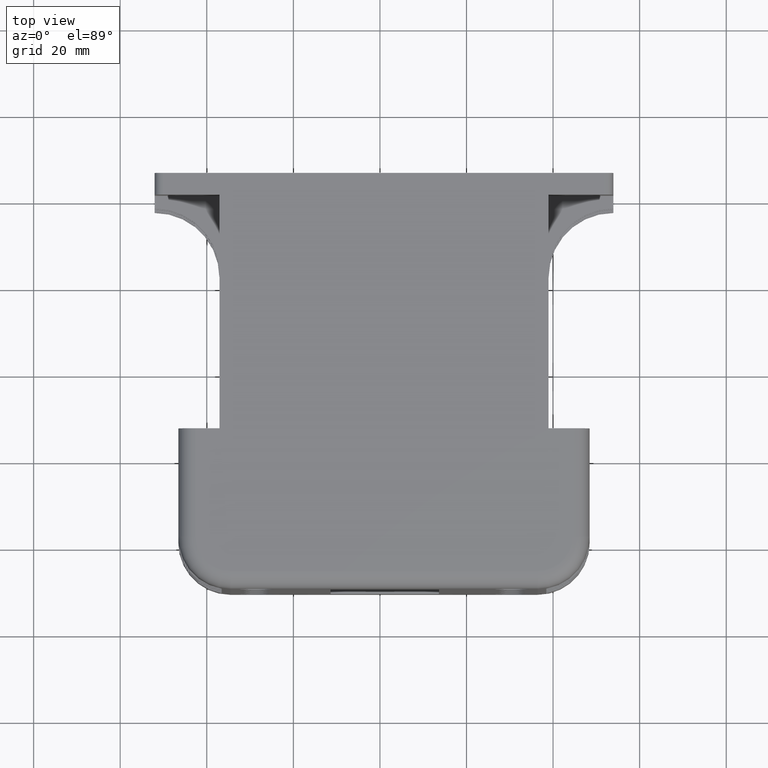
[diagram: clean part render]
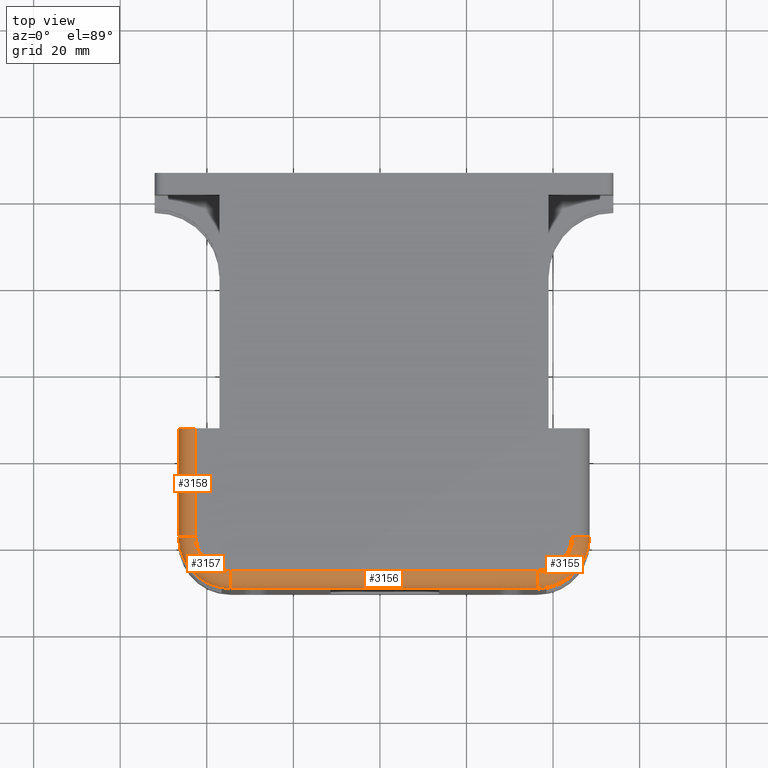
[diagram: same view with one multi-face feature highlighted, each face labeled with its STEP entity id]
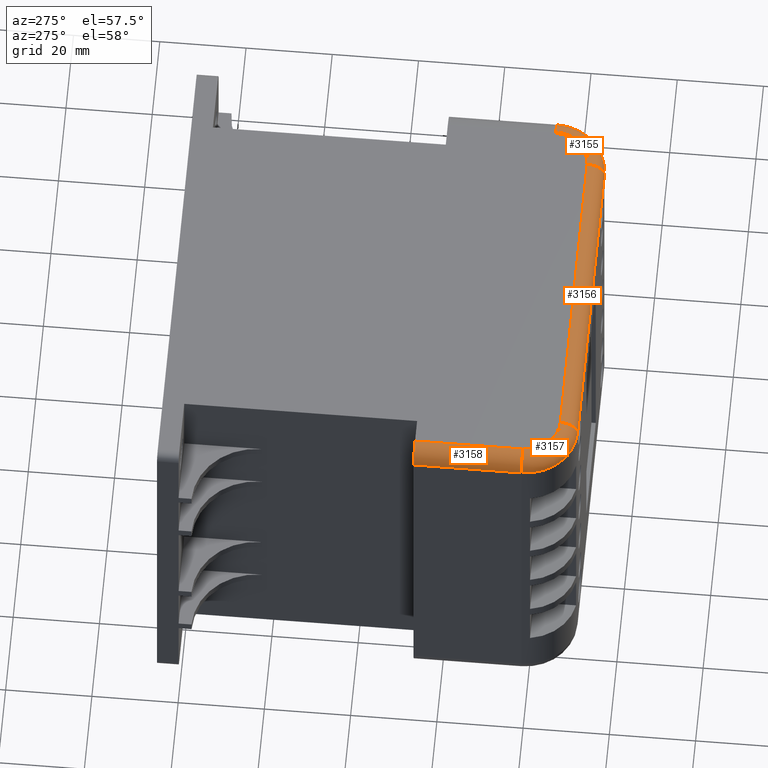
[diagram: same view with one multi-face feature highlighted, each face labeled with its STEP entity id]
A machine part, top view. The highlighted faces form ONE feature: a constant-radius fillet chain: 4 tangent blend faces with common blend radius 4 mm. The faces share edges in the B-rep.
A second angle (auxiliary view) of the same feature is appended — it is thin or edge-on in the first view.
Their STEP definitions:
[1] entity #3157 (Torus):
#26=TOROIDAL_SURFACE('',#3501,8.,4.);
#113=CIRCLE('',#3500,4.);
#114=CIRCLE('',#3502,4.00000000000004);
#115=CIRCLE('',#3503,12.);
#116=CIRCLE('',#3504,8.);
#288=FACE_OUTER_BOUND('',#478,.T.);
#478=EDGE_LOOP('',(#2142,#2143,#2144,#2145));
#1326=VERTEX_POINT('',#4854);
#1331=VERTEX_POINT('',#4870);
#1332=VERTEX_POINT('',#4871);
#1333=VERTEX_POINT('',#4876);
#1642=EDGE_CURVE('',#1331,#1332,#113,.T.);
#1645=EDGE_CURVE('',#1333,#1326,#114,.T.);
#1646=EDGE_CURVE('',#1326,#1332,#115,.T.);
#1647=EDGE_CURVE('',#1331,#1333,#116,.T.);
#2142=ORIENTED_EDGE('',*,*,#1645,.T.);
#2143=ORIENTED_EDGE('',*,*,#1646,.T.);
#2144=ORIENTED_EDGE('',*,*,#1642,.F.);
#2145=ORIENTED_EDGE('',*,*,#1647,.T.);
#3157=ADVANCED_FACE('',(#288),#26,.T.);
#3500=AXIS2_PLACEMENT_3D('',#4872,#3984,#3985);
#3501=AXIS2_PLACEMENT_3D('',#4875,#3988,#3989);
#3502=AXIS2_PLACEMENT_3D('',#4877,#3990,#3991);
#3503=AXIS2_PLACEMENT_3D('',#4878,#3992,#3993);
#3504=AXIS2_PLACEMENT_3D('',#4879,#3994,#3995);
#3984=DIRECTION('center_axis',(-1.,-5.55111512312578E-16,0.));
#3985=DIRECTION('ref_axis',(0.,0.,1.));
#3988=DIRECTION('center_axis',(0.,0.,-1.));
#3989=DIRECTION('ref_axis',(-1.,0.,0.));
#3990=DIRECTION('center_axis',(0.,1.,0.));
#3991=DIRECTION('ref_axis',(0.,0.,1.));
#3992=DIRECTION('center_axis',(0.,0.,1.));
#3993=DIRECTION('ref_axis',(0.707106781186548,0.707106781186547,0.));
#3994=DIRECTION('center_axis',(0.,0.,-1.));
#3995=DIRECTION('ref_axis',(0.707106781186548,0.707106781186547,0.));
#4854=CARTESIAN_POINT('',(3.39481529307603E-14,25.,86.));
#4870=CARTESIAN_POINT('',(-12.,33.,90.));
#4871=CARTESIAN_POINT('',(-12.,37.,86.));
#4872=CARTESIAN_POINT('Origin',(-12.,33.,86.));
#4875=CARTESIAN_POINT('Origin',(-12.,25.,86.));
#4876=CARTESIAN_POINT('',(-3.99999999999997,25.,90.));
#4877=CARTESIAN_POINT('Origin',(-3.99999999999997,25.,86.));
#4878=CARTESIAN_POINT('Origin',(-12.,25.,86.));
#4879=CARTESIAN_POINT('Origin',(-12.,25.,90.));
[2] entity #3158 (Cylinder):
#46=CYLINDRICAL_SURFACE('',#3505,4.);
#72=CIRCLE('',#3416,4.);
#114=CIRCLE('',#3502,4.00000000000004);
#289=FACE_OUTER_BOUND('',#479,.T.);
#479=EDGE_LOOP('',(#2146,#2147,#2148,#2149));
#715=LINE('',#4856,#1019);
#720=LINE('',#4881,#1024);
#1019=VECTOR('',#3967,10.);
#1024=VECTOR('',#3998,10.);
#1280=VERTEX_POINT('',#4697);
#1281=VERTEX_POINT('',#4699);
#1326=VERTEX_POINT('',#4854);
#1333=VERTEX_POINT('',#4876);
#1564=EDGE_CURVE('',#1281,#1280,#72,.T.);
#1635=EDGE_CURVE('',#1280,#1326,#715,.T.);
#1645=EDGE_CURVE('',#1333,#1326,#114,.T.);
#1648=EDGE_CURVE('',#1333,#1281,#720,.T.);
#2146=ORIENTED_EDGE('',*,*,#1564,.T.);
#2147=ORIENTED_EDGE('',*,*,#1635,.T.);
#2148=ORIENTED_EDGE('',*,*,#1645,.F.);
#2149=ORIENTED_EDGE('',*,*,#1648,.T.);
#3158=ADVANCED_FACE('',(#289),#46,.T.);
#3416=AXIS2_PLACEMENT_3D('',#4700,#3779,#3780);
#3502=AXIS2_PLACEMENT_3D('',#4877,#3990,#3991);
#3505=AXIS2_PLACEMENT_3D('',#4880,#3996,#3997);
#3779=DIRECTION('center_axis',(0.,1.,0.));
#3780=DIRECTION('ref_axis',(0.707106781186549,0.,0.707106781186546));
#3967=DIRECTION('',(0.,1.,0.));
#3990=DIRECTION('center_axis',(0.,1.,0.));
#3991=DIRECTION('ref_axis',(0.,0.,1.));
#3996=DIRECTION('center_axis',(0.,1.,0.));
#3997=DIRECTION('ref_axis',(0.707106781186549,0.,0.707106781186546));
#3998=DIRECTION('',(0.,-1.,0.));
#4697=CARTESIAN_POINT('',(3.39481529307603E-14,0.,86.));
#4699=CARTESIAN_POINT('',(-3.99999999999997,0.,90.));
#4700=CARTESIAN_POINT('Origin',(-3.99999999999997,0.,86.));
#4854=CARTESIAN_POINT('',(3.39481529307603E-14,25.,86.));
#4856=CARTESIAN_POINT('',(3.38618022510673E-14,0.,86.));
#4876=CARTESIAN_POINT('',(-3.99999999999997,25.,90.));
#4877=CARTESIAN_POINT('Origin',(-3.99999999999997,25.,86.));
#4880=CARTESIAN_POINT('Origin',(-3.99999999999997,0.,86.));
#4881=CARTESIAN_POINT('',(-3.99999999999997,0.,90.));
[3] entity #3156 (Cylinder):
#45=CYLINDRICAL_SURFACE('',#3499,4.);
#110=CIRCLE('',#3496,4.);
#113=CIRCLE('',#3500,4.);
#287=FACE_OUTER_BOUND('',#477,.T.);
#477=EDGE_LOOP('',(#2138,#2139,#2140,#2141));
#718=LINE('',#4873,#1022);
#719=LINE('',#4874,#1023);
#1022=VECTOR('',#3986,10.);
#1023=VECTOR('',#3987,10.);
#1329=VERTEX_POINT('',#4864);
#1330=VERTEX_POINT('',#4865);
#1331=VERTEX_POINT('',#4870);
#1332=VERTEX_POINT('',#4871);
#1639=EDGE_CURVE('',#1329,#1330,#110,.T.);
#1642=EDGE_CURVE('',#1331,#1332,#113,.T.);
#1643=EDGE_CURVE('',#1332,#1330,#718,.T.);
#1644=EDGE_CURVE('',#1329,#1331,#719,.T.);
#2138=ORIENTED_EDGE('',*,*,#1642,.T.);
#2139=ORIENTED_EDGE('',*,*,#1643,.T.);
#2140=ORIENTED_EDGE('',*,*,#1639,.F.);
#2141=ORIENTED_EDGE('',*,*,#1644,.T.);
#3156=ADVANCED_FACE('',(#287),#45,.T.);
#3496=AXIS2_PLACEMENT_3D('',#4866,#3976,#3977);
#3499=AXIS2_PLACEMENT_3D('',#4869,#3982,#3983);
#3500=AXIS2_PLACEMENT_3D('',#4872,#3984,#3985);
#3976=DIRECTION('center_axis',(-1.,0.,0.));
#3977=DIRECTION('ref_axis',(0.,0.,1.));
#3982=DIRECTION('center_axis',(1.,0.,0.));
#3983=DIRECTION('ref_axis',(0.,0.707106781186545,0.70710678118655));
#3984=DIRECTION('center_axis',(-1.,-5.55111512312578E-16,0.));
#3985=DIRECTION('ref_axis',(0.,0.,1.));
#3986=DIRECTION('',(-1.,0.,0.));
#3987=DIRECTION('',(1.,0.,0.));
#4864=CARTESIAN_POINT('',(-83.,33.,90.));
#4865=CARTESIAN_POINT('',(-83.,37.,86.));
#4866=CARTESIAN_POINT('Origin',(-83.,33.,86.));
#4869=CARTESIAN_POINT('Origin',(-71.25,33.,86.));
#4870=CARTESIAN_POINT('',(-12.,33.,90.));
#4871=CARTESIAN_POINT('',(-12.,37.,86.));
#4872=CARTESIAN_POINT('Origin',(-12.,33.,86.));
#4873=CARTESIAN_POINT('',(-71.25,37.,86.));
#4874=CARTESIAN_POINT('',(-71.25,33.,90.));
[4] entity #3155 (Torus):
#25=TOROIDAL_SURFACE('',#3495,8.,4.);
#109=CIRCLE('',#3494,4.);
#110=CIRCLE('',#3496,4.);
#111=CIRCLE('',#3497,12.);
#112=CIRCLE('',#3498,8.);
#286=FACE_OUTER_BOUND('',#476,.T.);
#476=EDGE_LOOP('',(#2134,#2135,#2136,#2137));
#1327=VERTEX_POINT('',#4858);
#1328=VERTEX_POINT('',#4860);
#1329=VERTEX_POINT('',#4864);
#1330=VERTEX_POINT('',#4865);
#1637=EDGE_CURVE('',#1327,#1328,#109,.T.);
#1639=EDGE_CURVE('',#1329,#1330,#110,.T.);
#1640=EDGE_CURVE('',#1330,#1328,#111,.T.);
#1641=EDGE_CURVE('',#1327,#1329,#112,.T.);
#2134=ORIENTED_EDGE('',*,*,#1639,.T.);
#2135=ORIENTED_EDGE('',*,*,#1640,.T.);
#2136=ORIENTED_EDGE('',*,*,#1637,.F.);
#2137=ORIENTED_EDGE('',*,*,#1641,.T.);
#3155=ADVANCED_FACE('',(#286),#25,.T.);
#3494=AXIS2_PLACEMENT_3D('',#4861,#3971,#3972);
#3495=AXIS2_PLACEMENT_3D('',#4863,#3974,#3975);
#3496=AXIS2_PLACEMENT_3D('',#4866,#3976,#3977);
#3497=AXIS2_PLACEMENT_3D('',#4867,#3978,#3979);
#3498=AXIS2_PLACEMENT_3D('',#4868,#3980,#3981);
#3971=DIRECTION('center_axis',(0.,-1.,0.));
#3972=DIRECTION('ref_axis',(0.,0.,1.));
#3974=DIRECTION('center_axis',(0.,0.,-1.));
#3975=DIRECTION('ref_axis',(-1.,0.,0.));
#3976=DIRECTION('center_axis',(-1.,0.,0.));
#3977=DIRECTION('ref_axis',(0.,0.,1.));
#3978=DIRECTION('center_axis',(0.,0.,1.));
#3979=DIRECTION('ref_axis',(-0.707106781186547,0.707106781186548,0.));
#3980=DIRECTION('center_axis',(0.,0.,-1.));
#3981=DIRECTION('ref_axis',(-0.707106781186547,0.707106781186548,0.));
#4858=CARTESIAN_POINT('',(-91.,25.,90.));
#4860=CARTESIAN_POINT('',(-95.,25.,86.));
#4861=CARTESIAN_POINT('Origin',(-91.,25.,86.));
#4863=CARTESIAN_POINT('Origin',(-83.,25.,86.));
#4864=CARTESIAN_POINT('',(-83.,33.,90.));
#4865=CARTESIAN_POINT('',(-83.,37.,86.));
#4866=CARTESIAN_POINT('Origin',(-83.,33.,86.));
#4867=CARTESIAN_POINT('Origin',(-83.,25.,86.));
#4868=CARTESIAN_POINT('Origin',(-83.,25.,90.));